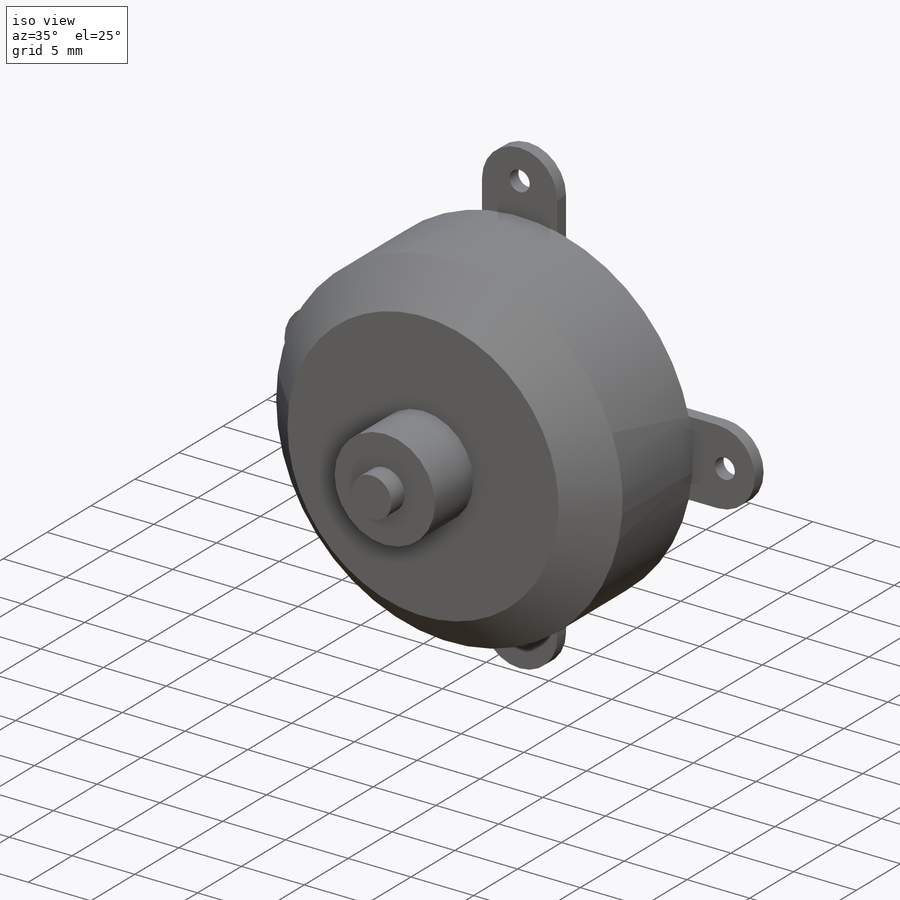
[diagram: iso view]
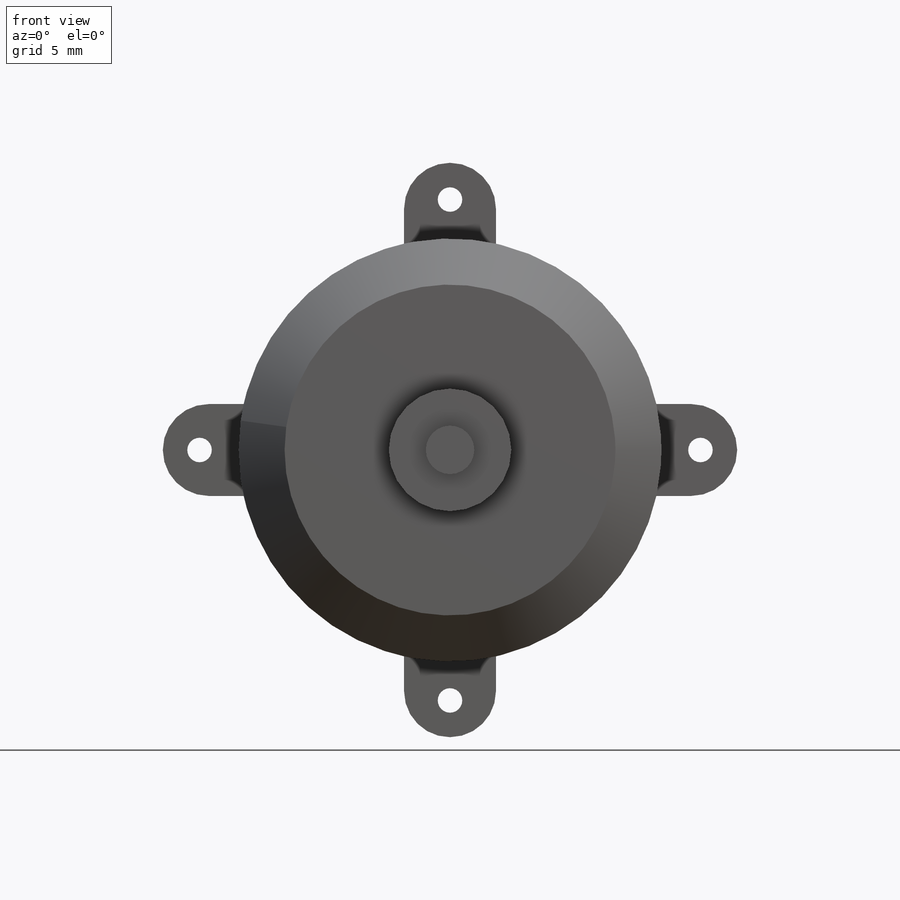
[diagram: front view]
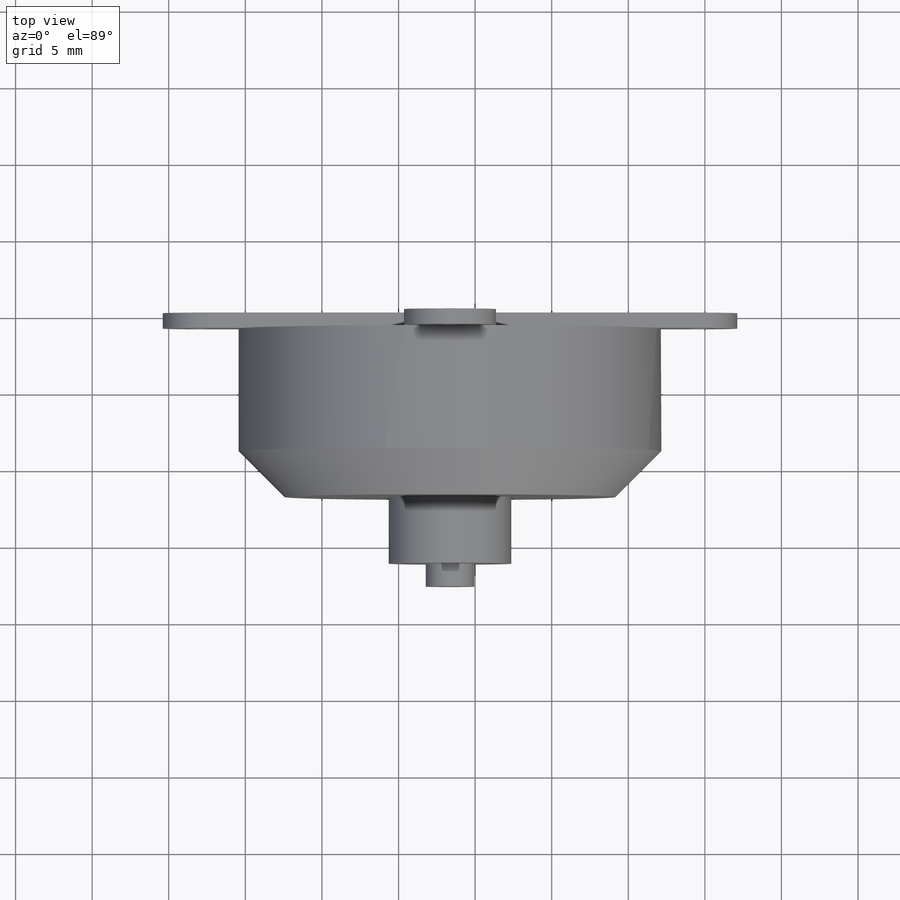
[diagram: top view]
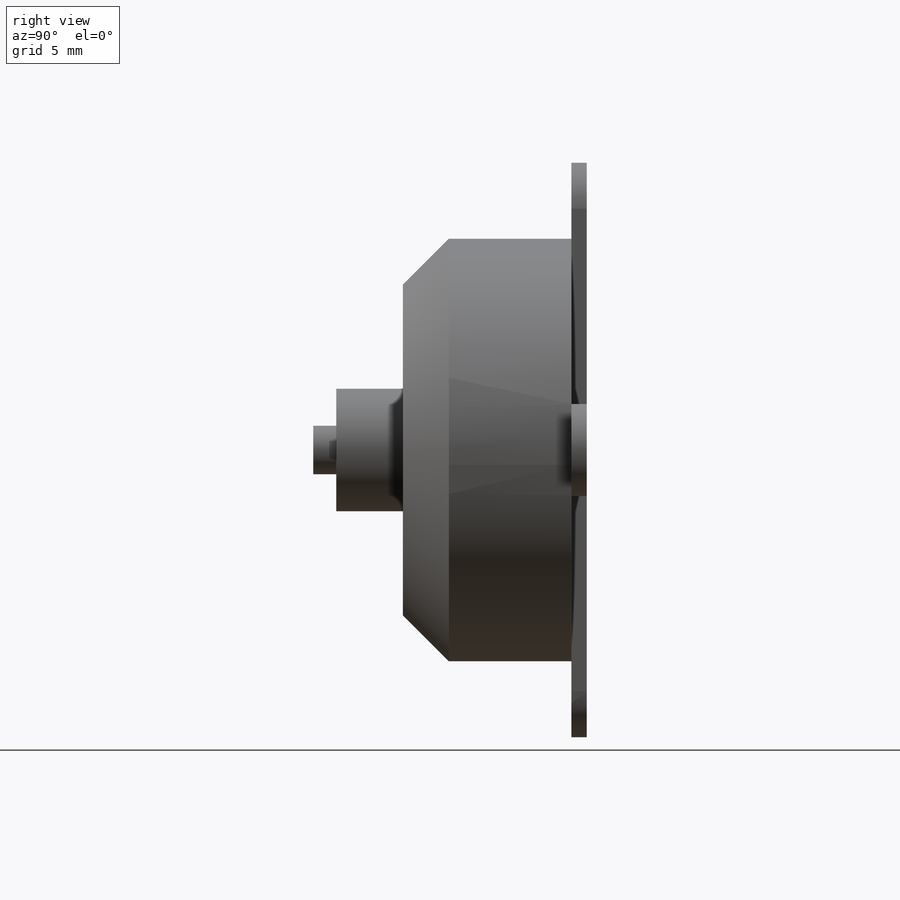
[diagram: right view]
SOLIDWORKS PART (.sldprt)
format: sldprt  version: not decoded by parser v0  size: 361,984 bytes
history: native  units: mm
features: sketch x7, extrude x5, plane x3, material x1, hole x1, chamfer x1 (+12 scaffold rows collapsed)
feature tree (30):
  scaffold x12  (default folders/planes/origin — collapsed)
  material  "Matériau <non spécifié>"
  plane  "Plan de face"
  plane  "Plan de dessus"
  plane  "Plan de droite"
  sketch  "Esquisse3"  dims[c1.D9=6.0mm c1.D10=6.0mm c1.D14=6.0mm c1.D16=6.0mm c1.D1=6.0mm c1.D2=6.0mm c1.D3=6.0mm c1.D4=6.0mm c1.D5=12.75mm c1.D6=12.75mm c1.D7=12.75mm c1.D8=12.75mm c1.D11=3.0mm c1.D12=3.0mm c1.D13=31.5mm c1.D15=31.5mm c1.D17=3.0mm c2.D2=12.75mm c2.D3=12.75mm c2.D9=12.75mm c2.D10=12.75mm c2.ModelUUID=0.0mm c2.UUID=0.0mm c3.ModelUUID=0.0mm]
  extrude  "Boss.-Extru.2"  Depth=1mm
  sketch  "Esquisse4"  dims[D1=~3.208241mm]
  extrude  "Boss.-Extru.5"  Depth=1mm
  sketch  "Esquisse8"  dims[c1.D1=~12.279273mm c1.D3=27.6mm c2.D1=18.75mm c2.D2=18.75mm]
  hole  "Trou pour taraudage pour trou taraudé M2x0.41"  Diameter=1.6mm Depth=10mm
  sketch  "Esquisse12"  dims[D1=3.0mm D2=3.0mm D3=3.0mm D4=3.0mm D5=2.4mm D6=2.4mm D7=2.4mm D8=2.4mm D9=37.5mm]
  sketch  "Esquisse11"  dims[hole-wizard template sketch: 46 standard entries collapsed; hole parameters kept: c15.Diamètre du perçage=1.6mm c15.Profondeur du perçage=10.0mm c15.D3=~14.816244mm c15.Angle de pointe=118.0deg]
  extrude  "Boss.-Extru.6"  Depth=11mm
  chamfer  "Chanfrein1"  Distance=3mm Angle=45deg
  sketch  "Esquisse13"  dims[c1.D1=18.75mm c1.D2=18.75mm c2.D1=18.75mm c2.D2=18.75mm]
  extrude  "Boss.-Extru.7"  Depth=4.35mm
  sketch  "Esquisse14"  dims[D1=18.75mm D2=18.75mm]
  extrude  "Boss.-Extru.8"  Depth=1.5mm
decode coverage: 14 of 14 modeling features carry decoded parameters
note: ~ marks probable driven/reference dimensions
note: suppression state not decoded; provenance and decode notes live in map.json
